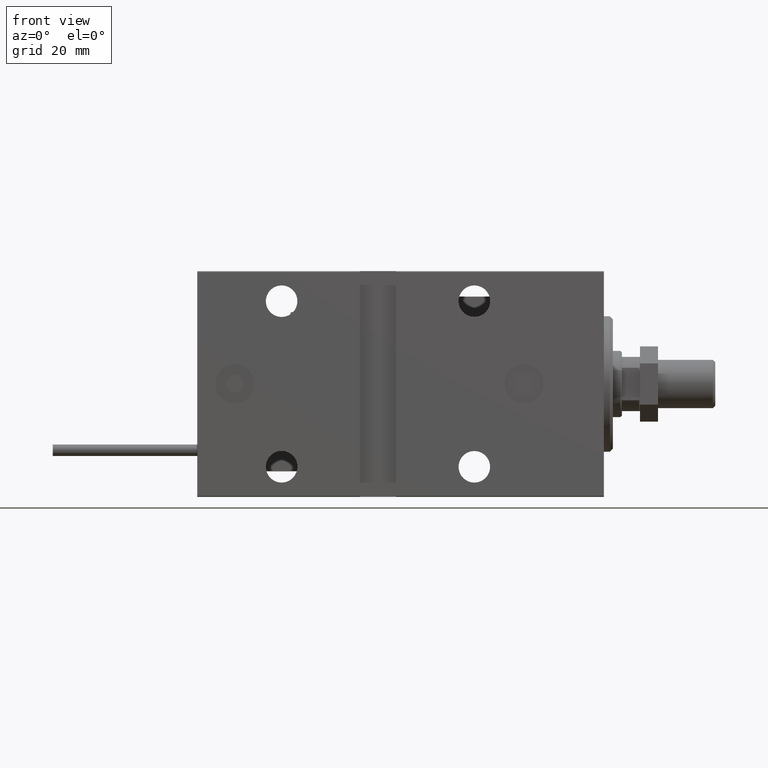
[diagram: clean part render]
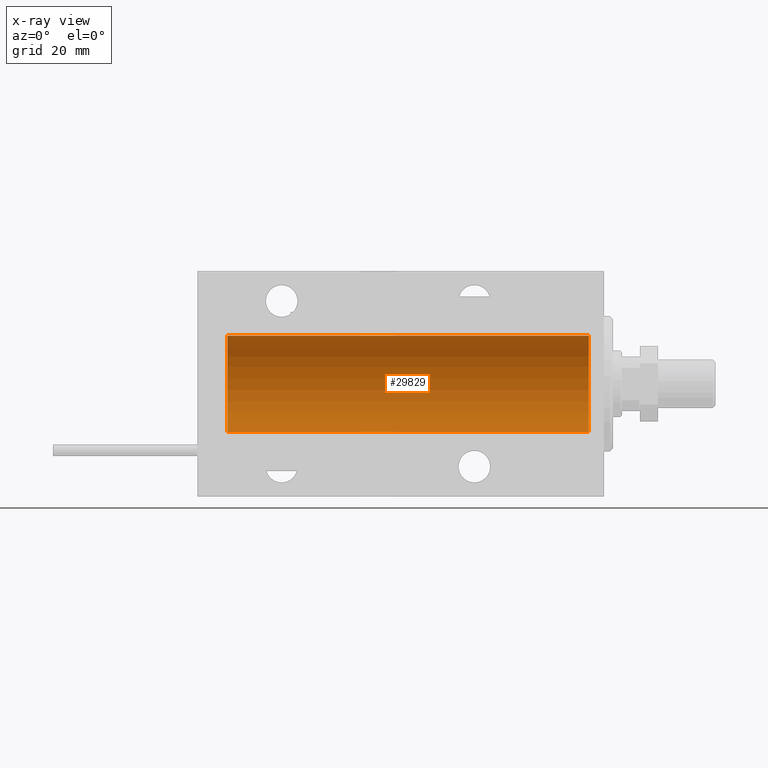
[diagram: x-ray — body ghosted, one internal face saturated and labeled with its STEP entity id]
A machine part, front view, then the same camera in x-ray: the body is ghosted and one INTERNAL B-rep face — a face not visible from any outside direction — is saturated and labeled: STEP entity #29829.
In plain terms, the highlighted cylindrical surface (partial cylindrical patch) has radius 16 mm, axis along (1, 0, -0).
Its self-contained STEP definition (entity closure, byte-faithful):
#1381 = DIRECTION ( 'NONE',  ( -1.000000000000000000, 0.000000000000000000, 0.000000000000000000 ) ) ;
#2372 = DIRECTION ( 'NONE',  ( -1.000000000000000000, -0.000000000000000000, -0.000000000000000000 ) ) ;
#2722 = EDGE_CURVE ( 'NONE', #23020, #10204, #45596, .T. ) ;
#3275 = FACE_OUTER_BOUND ( 'NONE', #10506, .T. ) ;
#6593 = DIRECTION ( 'NONE',  ( 0.000000000000000000, 0.000000000000000000, 1.000000000000000000 ) ) ;
#6762 = CARTESIAN_POINT ( 'NONE',  ( 5.000000000000004441, 0.000000000000000000, 16.00000000000000000 ) ) ;
#7060 = VECTOR ( 'NONE', #2372, 1000.000000000000000 ) ;
#8334 = EDGE_CURVE ( 'NONE', #18391, #10204, #25956, .T. ) ;
#10061 = CARTESIAN_POINT ( 'NONE',  ( 125.0000000000000000, 1.959434878635765131E-15, -16.00000000000000000 ) ) ;
#10204 = VERTEX_POINT ( 'NONE', #6762 ) ;
#10506 = EDGE_LOOP ( 'NONE', ( #50246, #38877, #31632, #23933 ) ) ;
#10629 = DIRECTION ( 'NONE',  ( 0.000000000000000000, 0.000000000000000000, 1.000000000000000000 ) ) ;
#11074 = EDGE_CURVE ( 'NONE', #26399, #23020, #45384, .T. ) ;
#11606 = CARTESIAN_POINT ( 'NONE',  ( 5.000000000000004441, 1.959434878635765131E-15, -16.00000000000000000 ) ) ;
#14425 = DIRECTION ( 'NONE',  ( -1.000000000000000000, 0.000000000000000000, 0.000000000000000000 ) ) ;
#16396 = CARTESIAN_POINT ( 'NONE',  ( 125.0000000000000000, 0.000000000000000000, 16.00000000000000000 ) ) ;
#17535 = AXIS2_PLACEMENT_3D ( 'NONE', #29459, #26398, #6593 ) ;
#17862 = LINE ( 'NONE', #37163, #7060 ) ;
#18001 = CARTESIAN_POINT ( 'NONE',  ( 125.0000000000000000, 0.000000000000000000, 0.000000000000000000 ) ) ;
#18391 = VERTEX_POINT ( 'NONE', #11606 ) ;
#23020 = VERTEX_POINT ( 'NONE', #16396 ) ;
#23933 = ORIENTED_EDGE ( 'NONE', *, *, #2722, .F. ) ;
#25956 = CIRCLE ( 'NONE', #27565, 16.00000000000000000 ) ;
#26398 = DIRECTION ( 'NONE',  ( -1.000000000000000000, -0.000000000000000000, -0.000000000000000000 ) ) ;
#26399 = VERTEX_POINT ( 'NONE', #10061 ) ;
#27565 = AXIS2_PLACEMENT_3D ( 'NONE', #32373, #1381, #36928 ) ;
#29459 = CARTESIAN_POINT ( 'NONE',  ( 125.0000000000000000, 0.000000000000000000, 0.000000000000000000 ) ) ;
#29829 = ADVANCED_FACE ( 'NONE', ( #3275 ), #45697, .F. ) ;
#30367 = CARTESIAN_POINT ( 'NONE',  ( 125.0000000000000000, 0.000000000000000000, 16.00000000000000000 ) ) ;
#31632 = ORIENTED_EDGE ( 'NONE', *, *, #8334, .T. ) ;
#32373 = CARTESIAN_POINT ( 'NONE',  ( 5.000000000000004441, 0.000000000000000000, 0.000000000000000000 ) ) ;
#34653 = EDGE_CURVE ( 'NONE', #26399, #18391, #17862, .T. ) ;
#36928 = DIRECTION ( 'NONE',  ( 0.000000000000000000, 0.000000000000000000, 1.000000000000000000 ) ) ;
#37163 = CARTESIAN_POINT ( 'NONE',  ( 125.0000000000000000, 1.959434878635765131E-15, -16.00000000000000000 ) ) ;
#38877 = ORIENTED_EDGE ( 'NONE', *, *, #34653, .T. ) ;
#38892 = AXIS2_PLACEMENT_3D ( 'NONE', #18001, #14425, #10629 ) ;
#42024 = DIRECTION ( 'NONE',  ( -1.000000000000000000, -0.000000000000000000, -0.000000000000000000 ) ) ;
#45384 = CIRCLE ( 'NONE', #38892, 16.00000000000000000 ) ;
#45596 = LINE ( 'NONE', #30367, #48946 ) ;
#45697 = CYLINDRICAL_SURFACE ( 'NONE', #17535, 16.00000000000000000 ) ;
#48946 = VECTOR ( 'NONE', #42024, 1000.000000000000000 ) ;
#50246 = ORIENTED_EDGE ( 'NONE', *, *, #11074, .F. ) ;